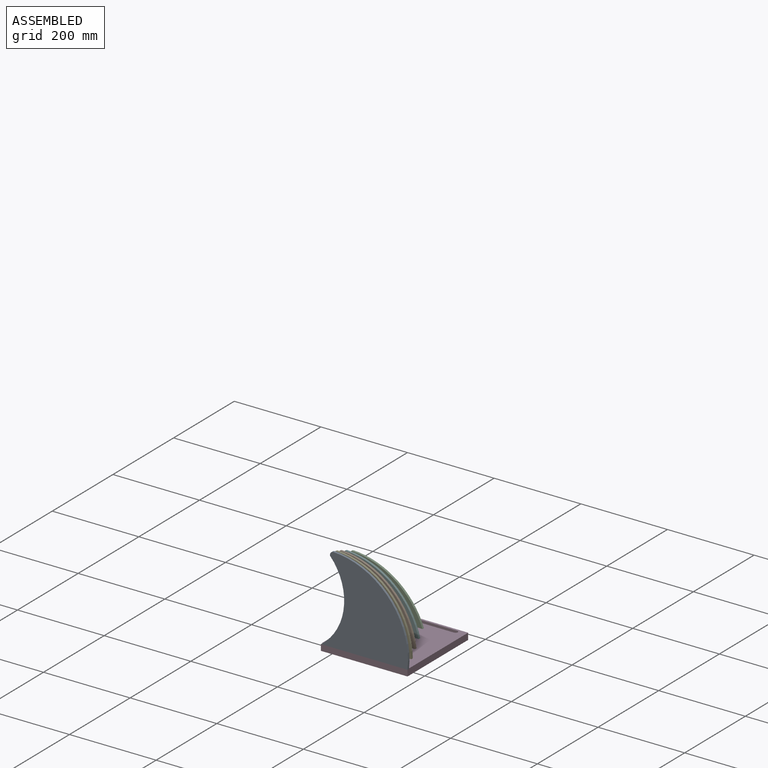
[diagram: assembled view]
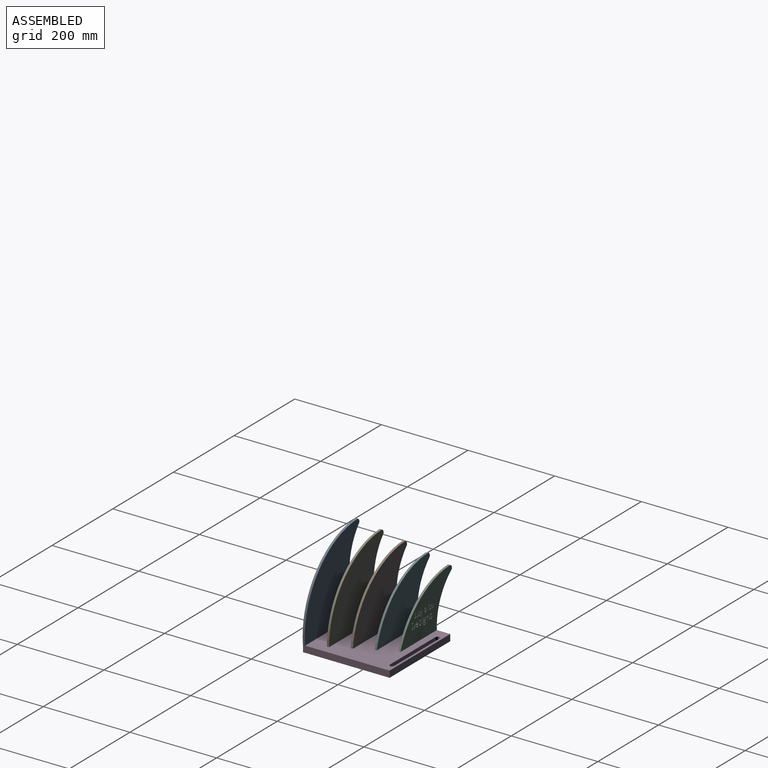
[diagram: assembled view, second angle]
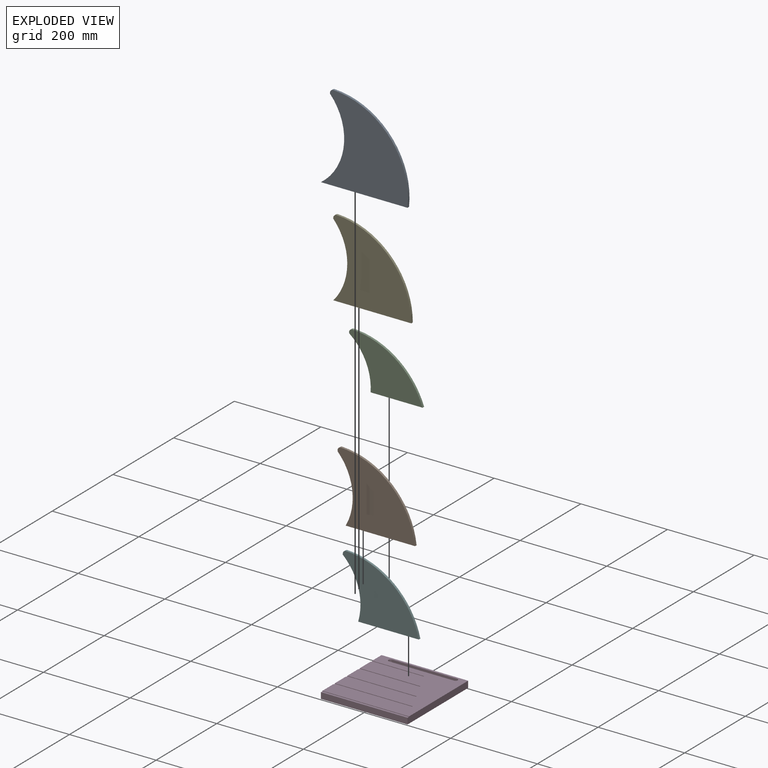
[diagram: exploded view]
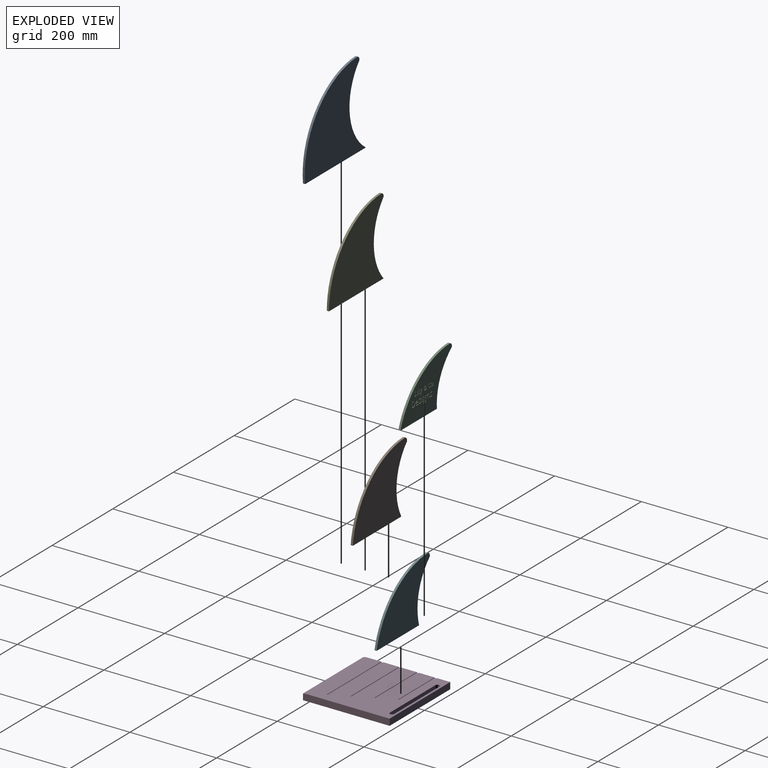
[diagram: exploded view, second angle]
ASSEMBLY  parts=6 mates=5
PART A: 7 faces, bbox 201.1x5x199.9 mm
  f0: cylinder r=180mm len=199.89mm, axis (0,1,0), area 1481.9mm2, adj f1,f4,f5,f6
  f1: cylinder r=8.34mm len=6.63mm, axis (0,1,0), area 48.8mm2, adj f0,f2,f5,f6
  f2: plane 5x3.04mm, normal (-1,0,0), area 15.2mm2, adj f1,f3,f5,f6
  f3: cylinder r=128.52mm len=190.22mm, axis (0,1,0), area 1079.5mm2, adj f2,f4,f5,f6
  f4: plane 200x5mm, normal (0,0,-1), area 1000mm2, adj f0,f3,f5,f6
  f5: plane 201.11x199.89mm, normal (0,-1,0), area 25371mm2, adj f0,f1,f2,f3,f4
  f6: plane 201.11x199.89mm, normal (0,1,0), area 25371mm2, adj f0,f1,f2,f3,f4
PART B: 7 faces, bbox 178.9x5x159.9 mm
  f0: cylinder r=180mm len=172.48mm, axis (0,1,0), area 1281.5mm2, adj f1,f4,f5,f6
  f1: cylinder r=8.34mm len=6.63mm, axis (0,1,0), area 48.8mm2, adj f0,f2,f5,f6
  f2: plane 5x3.04mm, normal (-1,0,0), area 15.2mm2, adj f1,f3,f5,f6
  f3: cylinder r=128.52mm len=150.22mm, axis (0,1,0), area 809.5mm2, adj f2,f4,f5,f6
  f4: plane 160x5mm, normal (0,0,-1), area 800mm2, adj f0,f3,f5,f6
  f5: plane 178.89x159.89mm, normal (0,-1,0), area 17881.6mm2, adj f0,f1,f2,f3,f4
  f6: plane 178.89x159.89mm, normal (0,1,0), area 17881.6mm2, adj f0,f1,f2,f3,f4
PART C: 336 faces, bbox 169.7x5x119.9 mm
  f0: plane 169.71x119.89mm, normal (0,1,0), area 10279mm2, adj f1,f2,f3,f4,f5,f7,f8,f11
  f1: cylinder r=180mm len=163.3mm, axis (0,1,0), area 1075.8mm2, adj f0,f2,f5,f6
  f2: cylinder r=8.34mm len=6.63mm, axis (0,1,0), area 48.8mm2, adj f0,f1,f3,f6
  f3: plane 5x3.04mm, normal (-1,0,0), area 15.2mm2, adj f0,f2,f4,f6
  f4: cylinder r=128.52mm len=110.22mm, axis (0,1,0), area 629.4mm2, adj f0,f3,f5,f6
  f5: plane 120x5mm, normal (0,0,-1), area 600mm2, adj f0,f1,f4,f6
  f6: plane 169.71x119.89mm, normal (0,-1,0), area 10865.3mm2, adj f1,f2,f3,f4,f5
  f7: plane 2x0.15mm, normal (1,0,0), area 0.3mm2, adj f0,f13,f14,f27
  f8: plane 2x0.15mm, normal (-1,0,0), area 0.3mm2, adj f0,f17,f26,f27
  f9: plane 2x0.15mm, normal (-1,0,0), area 0.3mm2, adj f20,f21,f27,f28
  f10: plane 2x0.15mm, normal (1,0,0), area 0.3mm2, adj f24,f25,f27,f28
  f11: extruded ~2.41x2mm, area 5.4mm2, adj f0,f12,f26,f27
  f12: extruded ~2.4x2mm, area 5.4mm2, adj f0,f11,f13,f27
  f13: extruded ~2.69x2mm, area 5.8mm2, adj f0,f7,f12,f27
  f14: extruded ~2.69x2mm, area 5.8mm2, adj f0,f7,f15,f27
  f15: extruded ~2.41x2mm, area 5.4mm2, adj f0,f14,f16,f27
  f16: extruded ~2.4x2mm, area 5.4mm2, adj f0,f15,f17,f27
  f17: extruded ~2.69x2mm, area 5.8mm2, adj f0,f8,f16,f27
  f18: extruded ~2x1.46mm, area 3.4mm2, adj f19,f25,f27,f28
  f19: extruded ~2x1.46mm, area 3.5mm2, adj f18,f20,f27,f28
  f20: extruded ~2x1.92mm, area 4mm2, adj f9,f19,f27,f28
  f21: extruded ~2x1.93mm, area 4mm2, adj f9,f22,f27,f28
  f22: extruded ~2x1.45mm, area 3.4mm2, adj f21,f23,f27,f28
  f23: extruded ~2x1.47mm, area 3.5mm2, adj f22,f24,f27,f28
  f24: extruded ~2x1.93mm, area 4mm2, adj f10,f23,f27,f28
  f25: extruded ~2x1.92mm, area 4mm2, adj f10,f18,f27,f28
  f26: extruded ~2.69x2mm, area 5.8mm2, adj f0,f8,f11,f27
  f27: plane 7.64x6.58mm, normal (0,1,0), area 23.1mm2, adj f7,f8,f9,f10,f11,f12,f13,f14
  f28: plane 5.53x3.9mm, normal (0,1,0), area 17.7mm2, adj f9,f10,f18,f19,f20,f21,f22,f23
  f29: plane 2x0.14mm, normal (-1,0,0), area 0.3mm2, adj f0,f39,f40,f53
  f30: plane 2x1.76mm, normal (1,0,0), area 3.5mm2, adj f0,f31,f43,f53
  f31: plane 2x0.94mm, normal (0,0,-1), area 1.9mm2, adj f0,f30,f32,f53
  f32: plane 2x1.4mm, normal (-0.98,0,-0.18), area 2.8mm2, adj f0,f31,f44,f53
  f33: plane 2x0.16mm, normal (1,0,0), area 0.3mm2, adj f0,f47,f48,f53
  f34: plane 2x1.4mm, normal (-0.98,0,0.18), area 2.8mm2, adj f0,f35,f51,f53
  f35: plane 2x0.94mm, normal (0,0,1), area 1.9mm2, adj f0,f34,f36,f53
  f36: plane 2x1.76mm, normal (1,0,0), area 3.5mm2, adj f0,f35,f52,f53
  f37: extruded ~2x1.99mm, area 4.1mm2, adj f0,f38,f52,f53
  f38: extruded ~3.19x2mm, area 7.2mm2, adj f0,f37,f39,f53
  f39: extruded ~3.6x2mm, area 7.8mm2, adj f0,f29,f38,f53
  f40: extruded ~3.59x2mm, area 7.8mm2, adj f0,f29,f41,f53
  f41: extruded ~3.17x2mm, area 7.2mm2, adj f0,f40,f42,f53
  f42: extruded ~2x1.99mm, area 4.1mm2, adj f0,f41,f43,f53
  f43: extruded ~2x1.28mm, area 3.3mm2, adj f0,f30,f42,f53
  f44: extruded ~2x0.85mm, area 2mm2, adj f0,f32,f45,f53
  f45: extruded ~2x1.22mm, area 2.5mm2, adj f0,f44,f46,f53
  f46: extruded ~2.25x2mm, area 5.2mm2, adj f0,f45,f47,f53
  f47: extruded ~2.85x2mm, area 6mm2, adj f0,f33,f46,f53
  f48: extruded ~2.84x2mm, area 6mm2, adj f0,f33,f49,f53
  f49: extruded ~2.37x2mm, area 5.5mm2, adj f0,f48,f50,f53
  f50: extruded ~2x1.14mm, area 2.3mm2, adj f0,f49,f51,f53
  f51: extruded ~2x0.8mm, area 1.9mm2, adj f0,f34,f50,f53
  f52: extruded ~2x1.28mm, area 3.3mm2, adj f0,f36,f37,f53
  f53: plane 10.19x7.68mm, normal (0,1,0), area 25.7mm2, adj f29,f30,f31,f32,f33,f34,f35,f36
  f54: plane 2x0.69mm, normal (-0.77,0,0.64), area 1.8mm2, adj f0,f55,f65,f96
  f55: plane 2x1.56mm, normal (0,0,1), area 3.1mm2, adj f0,f54,f56,f96
  f56: plane 2x0.04mm, normal (0.94,0,0.35), area 0.1mm2, adj f0,f55,f57,f96
  f57: plane 2x1.52mm, normal (0.77,0,-0.64), area 3.9mm2, adj f0,f56,f66,f96
  f58: plane 2x1.2mm, normal (0,0,-1), area 2.4mm2, adj f0,f67,f68,f96
  f59: plane 2.78x2.31mm, normal (0.77,0,-0.64), area 7.2mm2, adj f0,f60,f69,f96
  f60: plane 2x0.74mm, normal (0.59,0,0.81), area 1.8mm2, adj f0,f59,f70,f96
  f61: plane 2x0.27mm, normal (0.59,0,0.81), area 0.7mm2, adj f62,f82,f96,f97
  f62: plane 2.96x2.45mm, normal (-0.77,0,0.64), area 7.7mm2, adj f61,f83,f96,f97
  f63: plane 2x0.94mm, normal (-0.57,0,-0.82), area 2.3mm2, adj f89,f90,f96,f98
  f64: extruded ~2x1.37mm, area 2.8mm2, adj f0,f65,f95,f96
  f65: extruded ~2x1.2mm, area 2.7mm2, adj f0,f54,f64,f96
  f66: extruded ~2x1.37mm, area 3.2mm2, adj f0,f57,f67,f96
  f67: extruded ~2x1.65mm, area 3.4mm2, adj f0,f58,f66,f96
  f68: extruded ~2x1.14mm, area 2.3mm2, adj f0,f58,f69,f96
  f69: extruded ~2x0.98mm, area 2.1mm2, adj f0,f59,f68,f96
  f70: extruded ~2x1.06mm, area 2.9mm2, adj f0,f60,f71,f96
  f71: extruded ~2x1.15mm, area 2.5mm2, adj f0,f70,f72,f96
  f72: extruded ~2x1.49mm, area 3.4mm2, adj f0,f71,f73,f96
  f73: extruded ~2x1.75mm, area 3.8mm2, adj f0,f72,f74,f96
  f74: extruded ~2x1.83mm, area 4mm2, adj f0,f73,f75,f96
  f75: extruded ~2x1.77mm, area 3.9mm2, adj f0,f74,f76,f96
  f76: extruded ~2x1.09mm, area 2.3mm2, adj f0,f75,f77,f96
  f77: extruded ~2x1.2mm, area 2.9mm2, adj f0,f76,f78,f96
  f78: extruded ~2x1.43mm, area 3.8mm2, adj f0,f77,f79,f96
  f79: extruded ~2x1.45mm, area 3.1mm2, adj f0,f78,f80,f96
  f80: extruded ~2.03x2mm, area 4.6mm2, adj f0,f79,f95,f96
  f81: extruded ~2x0.76mm, area 1.6mm2, adj f82,f94,f96,f97
  f82: extruded ~2x0.88mm, area 2.4mm2, adj f61,f81,f96,f97
  f83: extruded ~2x0.9mm, area 2mm2, adj f62,f84,f96,f97
  f84: extruded ~2x0.97mm, area 2mm2, adj f83,f85,f96,f97
  f85: extruded ~2x1.4mm, area 3.1mm2, adj f84,f94,f96,f97
  f86: extruded ~2x0.86mm, area 1.9mm2, adj f87,f93,f96,f98
  f87: extruded ~2x0.73mm, area 1.7mm2, adj f86,f88,f96,f98
  f88: extruded ~2x0.67mm, area 1.4mm2, adj f87,f89,f96,f98
  f89: extruded ~2x0.56mm, area 1.6mm2, adj f63,f88,f96,f98
  f90: extruded ~2x0.85mm, area 2mm2, adj f63,f91,f96,f98
  f91: extruded ~2x0.75mm, area 1.6mm2, adj f90,f92,f96,f98
  f92: extruded ~2x0.94mm, area 2mm2, adj f91,f93,f96,f98
  f93: extruded ~2x0.85mm, area 1.9mm2, adj f86,f92,f96,f98
  f94: extruded ~2x1.26mm, area 2.8mm2, adj f81,f85,f96,f97
  f95: extruded ~2.35x2mm, area 5.1mm2, adj f0,f64,f80,f96
  f96: plane 10.19x7.94mm, normal (0,1,0), area 36mm2, adj f54,f55,f56,f57,f58,f59,f60,f61
  f97: plane 3.75x3.6mm, normal (0,1,0), area 8.1mm2, adj f61,f62,f81,f82,f83,f84,f85,f94
  f98: plane 2.93x2.34mm, normal (0,1,0), area 4.9mm2, adj f63,f86,f87,f88,f89,f90,f91,f92
  f99: plane 2x0.86mm, normal (-1,0,0), area 1.7mm2, adj f0,f100,f116,f125
  f100: plane 2x0.84mm, normal (-0.16,0,0.99), area 1.7mm2, adj f0,f99,f101,f125
  f101: plane 4.57x2mm, normal (-0.95,0,-0.32), area 9.6mm2, adj f0,f100,f102,f125
  f102: plane 2x0.04mm, normal (0,0,-1), area 0.1mm2, adj f0,f101,f103,f125
  f103: plane 2x0.94mm, normal (0.97,0,-0.25), area 1.9mm2, adj f0,f102,f104,f125
  f104: plane 3.63x2mm, normal (0.94,0,-0.33), area 7.7mm2, adj f0,f103,f105,f125
  f105: plane 2x0.83mm, normal (0.16,0,0.99), area 1.7mm2, adj f0,f104,f106,f125
  f106: plane 2x0.86mm, normal (1,0,0), area 1.7mm2, adj f0,f105,f107,f125
  f107: plane 2.97x2mm, normal (0,0,-1), area 5.9mm2, adj f0,f106,f108,f125
  f108: plane 2x0.86mm, normal (-1,0,0), area 1.7mm2, adj f0,f107,f109,f125
  f109: plane 2x0.67mm, normal (-0.16,0,0.99), area 1.4mm2, adj f0,f108,f110,f125
  f110: plane 6.24x2.43mm, normal (-0.93,0,0.36), area 13.4mm2, adj f0,f109,f111,f125
  f111: plane 2x0.76mm, normal (-0.92,0,-0.38), area 1.7mm2, adj f0,f110,f117,f125
  f112: plane 2x1.06mm, normal (-0.99,0,-0.13), area 2.1mm2, adj f0,f120,f121,f125
  f113: plane 7.52x2.8mm, normal (0.94,0,0.35), area 16.1mm2, adj f0,f114,f124,f125
  f114: plane 2x0.66mm, normal (0.15,0,0.99), area 1.3mm2, adj f0,f113,f115,f125
  f115: plane 2x0.86mm, normal (1,0,0), area 1.7mm2, adj f0,f114,f116,f125
  f116: plane 2.97x2mm, normal (0,0,-1), area 5.9mm2, adj f0,f99,f115,f125
  f117: extruded ~2x0.85mm, area 1.9mm2, adj f0,f111,f118,f125
  f118: extruded ~2x0.69mm, area 1.6mm2, adj f0,f117,f119,f125
  f119: extruded ~2x0.36mm, area 0.7mm2, adj f0,f118,f120,f125
  f120: extruded ~2x0.25mm, area 0.5mm2, adj f0,f112,f119,f125
  f121: extruded ~2x0.39mm, area 0.8mm2, adj f0,f112,f122,f125
  f122: extruded ~2x0.41mm, area 0.8mm2, adj f0,f121,f123,f125
  f123: extruded ~2x1.41mm, area 3.1mm2, adj f0,f122,f124,f125
  f124: extruded ~2x1.29mm, area 3.1mm2, adj f0,f113,f123,f125
  f125: plane 10.33x7.36mm, normal (0,1,0), area 26.3mm2, adj f99,f100,f101,f102,f103,f104,f105,f106
  f126: plane 2x1.11mm, normal (-0.17,0,-0.99), area 2.2mm2, adj f0,f127,f135,f136
  f127: plane 2x0.86mm, normal (-1,0,0), area 1.7mm2, adj f0,f126,f128,f136
  f128: plane 3.55x2mm, normal (0,0,1), area 7.1mm2, adj f0,f127,f129,f136
  f129: plane 2x0.86mm, normal (1,0,0), area 1.7mm2, adj f0,f128,f130,f136
  f130: plane 2x1.11mm, normal (0.17,0,-0.99), area 2.2mm2, adj f0,f129,f131,f136
  f131: plane 9.56x2mm, normal (1,0,0), area 19.1mm2, adj f0,f130,f132,f136
  f132: plane 2.45x2mm, normal (0,0,-1), area 4.9mm2, adj f0,f131,f133,f136
  f133: plane 2x0.86mm, normal (-1,0,0), area 1.7mm2, adj f0,f132,f134,f136
  f134: plane 2x1.11mm, normal (-0.17,0,0.99), area 2.2mm2, adj f0,f133,f135,f136
  f135: plane 8.51x2mm, normal (-1,0,0), area 17mm2, adj f0,f126,f134,f136
  f136: plane 10.61x3.55mm, normal (0,1,0), area 17.4mm2, adj f126,f127,f128,f129,f130,f131,f132,f133
  f137: plane 2x1.37mm, normal (-1,0,0), area 2.7mm2, adj f0,f138,f140,f141
  f138: plane 2x1.34mm, normal (0,0,1), area 2.7mm2, adj f0,f137,f139,f141
  f139: plane 2x1.37mm, normal (1,0,0), area 2.7mm2, adj f0,f138,f140,f141
  f140: plane 2x1.34mm, normal (0,0,-1), area 2.7mm2, adj f0,f137,f139,f141
  f141: plane 1.37x1.34mm, normal (0,1,0), area 1.8mm2, adj f137,f138,f139,f140
  f142: plane 2x0.86mm, normal (1,0,0), area 1.7mm2, adj f0,f143,f151,f152
  f143: plane 2x1.11mm, normal (0.17,0,-0.99), area 2.3mm2, adj f0,f142,f144,f152
  f144: plane 6.31x2mm, normal (1,0,0), area 12.6mm2, adj f0,f143,f145,f152
  f145: plane 2.45x2mm, normal (0,0,-1), area 4.9mm2, adj f0,f144,f146,f152
  f146: plane 2x0.86mm, normal (-1,0,0), area 1.7mm2, adj f0,f145,f147,f152
  f147: plane 2x1.11mm, normal (-0.17,0,0.99), area 2.3mm2, adj f0,f146,f148,f152
  f148: plane 5.26x2mm, normal (-1,0,0), area 10.5mm2, adj f0,f147,f149,f152
  f149: plane 2x1.11mm, normal (-0.17,0,-0.99), area 2.3mm2, adj f0,f148,f150,f152
  f150: plane 2x0.86mm, normal (-1,0,0), area 1.7mm2, adj f0,f149,f151,f152
  f151: plane 3.56x2mm, normal (0,0,1), area 7.1mm2, adj f0,f142,f150,f152
  f152: plane 7.36x3.56mm, normal (0,1,0), area 13mm2, adj f142,f143,f144,f145,f146,f147,f148,f149
  f153: plane 2x1.14mm, normal (0,0,-1), area 2.3mm2, adj f0,f154,f166,f167
  f154: plane 2x1.14mm, normal (-1,0,-0.09), area 2.3mm2, adj f0,f153,f155,f167
  f155: plane 3.44x2mm, normal (0,0,-1), area 6.9mm2, adj f0,f154,f156,f167
  f156: plane 7.8x2mm, normal (1,0,0), area 15.6mm2, adj f0,f155,f157,f167
  f157: plane 2x1.11mm, normal (0.17,0,0.99), area 2.2mm2, adj f0,f156,f158,f167
  f158: plane 2x0.86mm, normal (1,0,0), area 1.7mm2, adj f0,f157,f159,f167
  f159: plane 3.55x2mm, normal (0,0,-1), area 7.1mm2, adj f0,f158,f160,f167
  f160: plane 2x0.86mm, normal (-1,0,0), area 1.7mm2, adj f0,f159,f161,f167
  f161: plane 2x1.11mm, normal (-0.17,0,0.99), area 2.2mm2, adj f0,f160,f162,f167
  f162: plane 7.8x2mm, normal (-1,0,0), area 15.6mm2, adj f0,f161,f163,f167
  f163: plane 2x1.11mm, normal (-0.17,0,-0.99), area 2.2mm2, adj f0,f162,f164,f167
  f164: plane 2x0.86mm, normal (-1,0,0), area 1.7mm2, adj f0,f163,f165,f167
  f165: plane 7.13x2mm, normal (0,0,1), area 14.3mm2, adj f0,f164,f166,f167
  f166: plane 2.18x2mm, normal (1,0,0), area 4.4mm2, adj f0,f153,f165,f167
  f167: plane 9.9x7.13mm, normal (0,1,0), area 22.7mm2, adj f153,f154,f155,f156,f157,f158,f159,f160
  f168: plane 2x1.24mm, normal (0.92,0,0.4), area 2.7mm2, adj f0,f175,f176,f193
  f169: plane 2x1.41mm, normal (-1,0,0), area 2.8mm2, adj f0,f187,f188,f193
  f170: extruded ~2x1.76mm, area 3.8mm2, adj f0,f171,f192,f193
  f171: extruded ~2x0.66mm, area 1.7mm2, adj f0,f170,f172,f193
  f172: extruded ~2x0.69mm, area 1.5mm2, adj f0,f171,f173,f193
  f173: extruded ~2x0.93mm, area 2.3mm2, adj f0,f172,f174,f193
  f174: extruded ~2x1.63mm, area 3.4mm2, adj f0,f173,f175,f193
  f175: extruded ~2.74x2mm, area 5.6mm2, adj f0,f168,f174,f193
  f176: extruded ~3.17x2mm, area 6.5mm2, adj f0,f168,f177,f193
  f177: extruded ~2.74x2mm, area 5.7mm2, adj f0,f176,f178,f193
  f178: extruded ~2x1.94mm, area 4.5mm2, adj f0,f177,f179,f193
  f179: extruded ~2x1.18mm, area 2.5mm2, adj f0,f178,f180,f193
  f180: extruded ~2x0.88mm, area 2.5mm2, adj f0,f179,f181,f193
  f181: extruded ~2x1.99mm, area 4.4mm2, adj f0,f180,f182,f193
  f182: extruded ~2x1.98mm, area 4.4mm2, adj f0,f181,f183,f193
  f183: extruded ~2x1mm, area 2.3mm2, adj f0,f182,f184,f193
  f184: extruded ~2x1.16mm, area 2.8mm2, adj f0,f183,f185,f193
  f185: extruded ~2x1.83mm, area 3.8mm2, adj f0,f184,f186,f193
  f186: extruded ~2x1.6mm, area 3.2mm2, adj f0,f185,f187,f193
  f187: extruded ~2x1.55mm, area 3.3mm2, adj f0,f169,f186,f193
  f188: extruded ~3.11x2mm, area 6.4mm2, adj f0,f169,f189,f193
  f189: extruded ~2.93x2mm, area 6.2mm2, adj f0,f188,f190,f193
  f190: extruded ~2.16x2mm, area 5mm2, adj f0,f189,f191,f193
  f191: extruded ~2x1.66mm, area 3.6mm2, adj f0,f190,f192,f193
  f192: extruded ~2.41x2mm, area 5.5mm2, adj f0,f170,f191,f193
  f193: plane 10.4x7.11mm, normal (0,1,0), area 30.9mm2, adj f168,f169,f170,f171,f172,f173,f174,f175
  f194: plane 2x0.07mm, normal (0,0,-1), area 0.1mm2, adj f0,f195,f206,f211
  f195: plane 2x1.37mm, normal (0.98,0,-0.18), area 2.8mm2, adj f0,f194,f196,f211
  f196: plane 2x1.24mm, normal (0,0,-1), area 2.5mm2, adj f0,f195,f197,f211
  f197: plane 10.03x2mm, normal (-1,0,0), area 20.1mm2, adj f0,f196,f198,f211
  f198: plane 2x1.52mm, normal (0,0,1), area 3mm2, adj f0,f197,f199,f211
  f199: plane 5.26x2mm, normal (1,0,0), area 10.5mm2, adj f0,f198,f207,f211
  f200: plane 6.49x2mm, normal (-1,0,0), area 13mm2, adj f0,f201,f210,f211
  f201: plane 2x1.52mm, normal (0,0,1), area 3mm2, adj f0,f200,f202,f211
  f202: plane 6.54x2mm, normal (1,0,0), area 13.1mm2, adj f0,f201,f203,f211
  f203: extruded ~2.8x2mm, area 6.1mm2, adj f0,f202,f204,f211
  f204: extruded ~2.73x2mm, area 5.9mm2, adj f0,f203,f205,f211
  f205: extruded ~2x1.88mm, area 3.9mm2, adj f0,f204,f206,f211
  f206: extruded ~2x1.31mm, area 3.5mm2, adj f0,f194,f205,f211
  f207: extruded ~2.81x2mm, area 5.9mm2, adj f0,f199,f208,f211
  f208: extruded ~2.31x2mm, area 5.1mm2, adj f0,f207,f209,f211
  f209: extruded ~2x1.75mm, area 3.8mm2, adj f0,f208,f210,f211
  f210: extruded ~2x1.83mm, area 3.9mm2, adj f0,f200,f209,f211
  f211: plane 10.22x8.39mm, normal (0,1,0), area 36.5mm2, adj f194,f195,f196,f197,f198,f199,f200,f201
  f212: plane 2x1.78mm, normal (0,0,-1), area 3.5mm2, adj f0,f232,f233,f256
  f213: plane 2x1.86mm, normal (0.12,0,0.99), area 3.7mm2, adj f0,f214,f240,f256
  f214: plane 2x0.96mm, normal (1,0,0), area 1.9mm2, adj f0,f213,f215,f256
  f215: plane 3.47x2mm, normal (0,0,-1), area 6.9mm2, adj f0,f214,f255,f256
  f216: plane 2x1.82mm, normal (0,0,1), area 3.6mm2, adj f241,f254,f256,f257
  f217: extruded ~2.8x2mm, area 6mm2, adj f0,f218,f255,f256
  f218: extruded ~2.54x2mm, area 5.6mm2, adj f0,f217,f219,f256
  f219: extruded ~2x1.76mm, area 3.7mm2, adj f0,f218,f220,f256
  f220: extruded ~2x1.27mm, area 3.4mm2, adj f0,f219,f221,f256
  f221: extruded ~2x0.93mm, area 2.5mm2, adj f0,f220,f222,f256
  f222: extruded ~2x0.96mm, area 2mm2, adj f0,f221,f223,f256
  f223: extruded ~2x0.85mm, area 1.8mm2, adj f0,f222,f224,f256
  f224: extruded ~2x0.64mm, area 1.7mm2, adj f0,f223,f225,f256
  f225: extruded ~2x1.65mm, area 3.8mm2, adj f0,f224,f226,f256
  f226: extruded ~2x1.58mm, area 3.5mm2, adj f0,f225,f227,f256
  f227: extruded ~2.07x2mm, area 4.9mm2, adj f0,f226,f228,f256
  f228: extruded ~3.03x2mm, area 6.3mm2, adj f0,f227,f229,f256
  f229: extruded ~3.9x2mm, area 8.1mm2, adj f0,f228,f230,f256
  f230: extruded ~2.54x2mm, area 6mm2, adj f0,f229,f231,f256
  f231: extruded ~2x2mm, area 4.5mm2, adj f0,f230,f232,f256
  f232: extruded ~2.5x2mm, area 5.3mm2, adj f0,f212,f231,f256
  f233: extruded ~2x1.16mm, area 2.4mm2, adj f0,f212,f234,f256
  f234: extruded ~2x0.61mm, area 1.5mm2, adj f0,f233,f235,f256
  f235: extruded ~2x1.29mm, area 3.4mm2, adj f0,f234,f236,f256
  f236: extruded ~2x0.84mm, area 1.7mm2, adj f0,f235,f237,f256
  f237: extruded ~2.76x2mm, area 5.9mm2, adj f0,f236,f238,f256
  f238: extruded ~2.35x2mm, area 5.3mm2, adj f0,f237,f239,f256
  f239: extruded ~2x1.17mm, area 2.4mm2, adj f0,f238,f240,f256
  f240: extruded ~2x0.84mm, area 1.9mm2, adj f0,f213,f239,f256
  f241: extruded ~2x1.89mm, area 3.9mm2, adj f216,f242,f256,f257
  f242: extruded ~2x1.13mm, area 2.6mm2, adj f241,f243,f256,f257
  f243: extruded ~2x1.55mm, area 3.8mm2, adj f242,f244,f256,f257
  f244: extruded ~2.83x2mm, area 5.8mm2, adj f243,f245,f256,f257
  f245: extruded ~2x1.97mm, area 4.1mm2, adj f244,f246,f256,f257
  f246: extruded ~2x1.24mm, area 3mm2, adj f245,f247,f256,f257
  f247: extruded ~2x1.42mm, area 3.2mm2, adj f246,f254,f256,f257
  f248: extruded ~2.26x2.25mm, area 7.3mm2, adj f249,f253,f256,f258
  f249: extruded ~2.22x2.16mm, area 7.1mm2, adj f248,f250,f256,f258
  f250: extruded ~2x1.66mm, area 3.6mm2, adj f249,f251,f256,f258
  f251: extruded ~2x1.59mm, area 3.5mm2, adj f250,f252,f256,f258
  f252: extruded ~2x1.71mm, area 3.7mm2, adj f251,f253,f256,f258
  f253: extruded ~2x1.65mm, area 3.6mm2, adj f248,f252,f256,f258
  f254: extruded ~2x1.61mm, area 3.4mm2, adj f216,f247,f256,f257
  f255: extruded ~2x1.42mm, area 2.9mm2, adj f0,f215,f217,f256
  f256: plane 14.72x9.46mm, normal (0,1,0), area 57.6mm2, adj f212,f213,f214,f215,f216,f217,f218,f219
  f257: plane 6.41x3.57mm, normal (0,1,0), area 19.5mm2, adj f216,f241,f242,f243,f244,f245,f246,f247
  f258: plane 4.48x4.42mm, normal (0,1,0), area 16.4mm2, adj f248,f249,f250,f251,f252,f253
  f259: extruded ~2x0.63mm, area 1.4mm2, adj f0,f260,f266,f267
  f260: extruded ~2x0.76mm, area 1.7mm2, adj f0,f259,f261,f267
  f261: extruded ~2x0.76mm, area 1.7mm2, adj f0,f260,f262,f267
  f262: extruded ~2x0.63mm, area 1.4mm2, adj f0,f261,f263,f267
  f263: extruded ~2x0.64mm, area 1.4mm2, adj f0,f262,f264,f267
  f264: extruded ~2x0.76mm, area 1.7mm2, adj f0,f263,f265,f267
  f265: extruded ~2x0.76mm, area 1.7mm2, adj f0,f264,f266,f267
  f266: extruded ~2x0.64mm, area 1.4mm2, adj f0,f259,f265,f267
  f267: plane 2.02x1.8mm, normal (0,1,0), area 3mm2, adj f259,f260,f261,f262,f263,f264,f265,f266
  f268: plane 10.03x2mm, normal (-1,0,0), area 20.1mm2, adj f0,f269,f271,f272
  f269: plane 2x1.52mm, normal (0,0,1), area 3mm2, adj f0,f268,f270,f272
  f270: plane 10.03x2mm, normal (1,0,0), area 20.1mm2, adj f0,f269,f271,f272
  f271: plane 2x1.52mm, normal (0,0,-1), area 3mm2, adj f0,f268,f270,f272
  f272: plane 10.03x1.52mm, normal (0,1,0), area 15.2mm2, adj f268,f269,f270,f271
  f273: plane 2x1.24mm, normal (0.92,0,0.4), area 2.7mm2, adj f0,f280,f281,f298
  f274: plane 2x1.41mm, normal (-1,0,0), area 2.8mm2, adj f0,f292,f293,f298
  f275: extruded ~2x1.76mm, area 3.8mm2, adj f0,f276,f297,f298
  f276: extruded ~2x0.66mm, area 1.7mm2, adj f0,f275,f277,f298
  f277: extruded ~2x0.69mm, area 1.5mm2, adj f0,f276,f278,f298
  f278: extruded ~2x0.93mm, area 2.3mm2, adj f0,f277,f279,f298
  f279: extruded ~2x1.63mm, area 3.4mm2, adj f0,f278,f280,f298
  f280: extruded ~2.74x2mm, area 5.6mm2, adj f0,f273,f279,f298
  f281: extruded ~3.17x2mm, area 6.5mm2, adj f0,f273,f282,f298
  f282: extruded ~2.74x2mm, area 5.7mm2, adj f0,f281,f283,f298
  f283: extruded ~2x1.94mm, area 4.5mm2, adj f0,f282,f284,f298
  f284: extruded ~2x1.18mm, area 2.5mm2, adj f0,f283,f285,f298
  f285: extruded ~2x0.88mm, area 2.5mm2, adj f0,f284,f286,f298
  f286: extruded ~2x1.99mm, area 4.4mm2, adj f0,f285,f287,f298
  f287: extruded ~2x1.98mm, area 4.4mm2, adj f0,f286,f288,f298
  f288: extruded ~2x1mm, area 2.3mm2, adj f0,f287,f289,f298
  f289: extruded ~2x1.16mm, area 2.8mm2, adj f0,f288,f290,f298
  f290: extruded ~2x1.83mm, area 3.8mm2, adj f0,f289,f291,f298
  f291: extruded ~2x1.6mm, area 3.2mm2, adj f0,f290,f292,f298
  f292: extruded ~2x1.55mm, area 3.3mm2, adj f0,f274,f291,f298
  f293: extruded ~3.11x2mm, area 6.4mm2, adj f0,f274,f294,f298
  f294: extruded ~2.93x2mm, area 6.2mm2, adj f0,f293,f295,f298
  f295: extruded ~2.16x2mm, area 5mm2, adj f0,f294,f296,f298
  f296: extruded ~2x1.66mm, area 3.6mm2, adj f0,f295,f297,f298
  f297: extruded ~2.41x2mm, area 5.5mm2, adj f0,f275,f296,f298
  f298: plane 10.4x7.11mm, normal (0,1,0), area 30.9mm2, adj f273,f274,f275,f276,f277,f278,f279,f280
  f299: plane 2x1.36mm, normal (1,0,0), area 2.7mm2, adj f0,f303,f317,f318
  f300: plane 6.91x2mm, normal (0,0,1), area 13.8mm2, adj f0,f301,f305,f318
  f301: plane 2x0.96mm, normal (1,0,0), area 1.9mm2, adj f0,f300,f306,f318
  f302: plane 5.25x2mm, normal (0,0,-1), area 10.5mm2, adj f313,f316,f318,f319
  f303: extruded ~3.2x2mm, area 6.6mm2, adj f0,f299,f304,f318
  f304: extruded ~2.38x2mm, area 5.3mm2, adj f0,f303,f305,f318
  f305: extruded ~2.68x2mm, area 5.8mm2, adj f0,f300,f304,f318
  f306: extruded ~3.27x2mm, area 7.1mm2, adj f0,f301,f307,f318
  f307: extruded ~2.98x2mm, area 6.7mm2, adj f0,f306,f308,f318
  f308: extruded ~3.21x2mm, area 7.3mm2, adj f0,f307,f309,f318
  f309: extruded ~3.86x2mm, area 8.2mm2, adj f0,f308,f310,f318
  f310: extruded ~3.76x2mm, area 8.2mm2, adj f0,f309,f311,f318
  f311: extruded ~3.51x2mm, area 7.7mm2, adj f0,f310,f312,f318
  f312: extruded ~2x1.73mm, area 3.5mm2, adj f0,f311,f317,f318
  f313: extruded ~2.18x2mm, area 4.8mm2, adj f302,f314,f318,f319
  f314: extruded ~2x1.93mm, area 4.3mm2, adj f313,f315,f318,f319
  f315: extruded ~2x1.83mm, area 4.1mm2, adj f314,f316,f318,f319
  f316: extruded ~2.2x2mm, area 4.7mm2, adj f302,f315,f318,f319
  f317: extruded ~2x1.52mm, area 3.2mm2, adj f0,f299,f312,f318
  f318: plane 10.4x8.48mm, normal (0,1,0), area 40.1mm2, adj f299,f300,f301,f302,f303,f304,f305,f306
  f319: plane 5.25x2.96mm, normal (0,1,0), area 12.5mm2, adj f302,f313,f314,f315,f316
  f320: plane 4.1x2mm, normal (0,0,-1), area 8.2mm2, adj f0,f321,f333,f334
  f321: plane 13.38x2mm, normal (-1,0,0), area 26.8mm2, adj f0,f320,f322,f334
  f322: plane 3.71x2mm, normal (0,0,1), area 7.4mm2, adj f0,f321,f326,f334
  f323: plane 2x1.9mm, normal (0,0,-1), area 3.8mm2, adj f324,f332,f334,f335
  f324: plane 10.69x2mm, normal (1,0,0), area 21.4mm2, adj f323,f325,f334,f335
  f325: plane 2.26x2mm, normal (0,0,1), area 4.5mm2, adj f324,f329,f334,f335
  f326: extruded ~5.18x2mm, area 11.2mm2, adj f0,f322,f327,f334
  f327: extruded ~5.07x2mm, area 11.1mm2, adj f0,f326,f328,f334
  f328: extruded ~4.83x2mm, area 10.5mm2, adj f0,f327,f333,f334
  f329: extruded ~3.91x2mm, area 8.5mm2, adj f325,f330,f334,f335
  f330: extruded ~3.95x2mm, area 8.5mm2, adj f329,f331,f334,f335
  f331: extruded ~4.05x2mm, area 8.8mm2, adj f330,f332,f334,f335
  f332: extruded ~4.18x2mm, area 9mm2, adj f323,f331,f334,f335
  f333: extruded ~4.85x2mm, area 10.6mm2, adj f0,f320,f328,f334
  f334: plane 13.38x10.68mm, normal (0,1,0), area 56.6mm2, adj f320,f321,f322,f323,f324,f325,f326,f327
  f335: plane 10.69x7.48mm, normal (0,1,0), area 70.2mm2, adj f323,f324,f325,f329,f330,f331,f332
PART D: 31 faces, bbox 200x200x15 mm
  f0: plane 200x15mm, normal (0,1,0), area 2975mm2, adj f1,f2,f4,f5,f13,f14,f15,f17
  f1: plane 200x195mm, normal (0,0,1), area 34423.6mm2, adj f0,f3,f4,f6,f7,f8,f9,f10
  f2: plane 200x14mm, normal (-1,0,0), area 2800mm2, adj f0,f3,f5,f14
  f3: plane 200x15mm, normal (0,-1,0), area 2995mm2, adj f1,f2,f4,f5,f13,f14
  f4: plane 200x15mm, normal (1,0,0), area 3000mm2, adj f0,f1,f3,f5
  f5: plane 200x200mm, normal (0,0,-1), area 40000mm2, adj f0,f2,f3,f4
  f6: cylinder r=5.02mm len=10.04mm, axis (0,0,1), area 167.2mm2, adj f1,f7,f11,f12
  f7: plane 149.53x10mm, normal (1,0,0), area 1495.3mm2, adj f1,f6,f8,f12
  f8: plane 10x0.16mm, normal (0,1,0), area 1.6mm2, adj f1,f7,f9,f12
  f9: cylinder r=4.84mm len=10mm, axis (0,0,1), area 152mm2, adj f1,f8,f10,f12
  f10: plane 10x0.16mm, normal (0,1,0), area 1.6mm2, adj f1,f9,f11,f12
  f11: plane 149.53x10mm, normal (-1,0,0), area 1495.3mm2, adj f1,f6,f10,f12
  f12: plane 159.86x10.04mm, normal (0,0,1), area 1576.4mm2, adj f6,f7,f8,f9,f10,f11
  f13: plane 200x1mm, normal (-1,0,0), area 200mm2, adj f0,f1,f3,f14
  f14: plane 200x5mm, normal (0,0,1), area 1000mm2, adj f0,f2,f3,f13
  f15: plane 180x1mm, normal (1,0,0), area 180mm2, adj f0,f1,f16,f18
  f16: plane 5x1mm, normal (0,1,0), area 5mm2, adj f1,f15,f17,f18
  f17: plane 180x1mm, normal (-1,0,0), area 180mm2, adj f0,f1,f16,f18
  f18: plane 180x5mm, normal (0,0,1), area 900mm2, adj f0,f15,f16,f17
  f19: plane 160x1mm, normal (1,0,0), area 160mm2, adj f0,f1,f20,f22
  f20: plane 5x1mm, normal (0,1,0), area 5mm2, adj f1,f19,f21,f22
  f21: plane 160x1mm, normal (-1,0,0), area 160mm2, adj f0,f1,f20,f22
  f22: plane 160x5mm, normal (0,0,1), area 800mm2, adj f0,f19,f20,f21
  f23: plane 140x1mm, normal (1,0,0), area 140mm2, adj f0,f1,f24,f26
  f24: plane 5x1mm, normal (0,1,0), area 5mm2, adj f1,f23,f25,f26
  f25: plane 140x1mm, normal (-1,0,0), area 140mm2, adj f0,f1,f24,f26
  f26: plane 140x5mm, normal (0,0,1), area 700mm2, adj f0,f23,f24,f25
  f27: plane 120x1mm, normal (-1,0,0), area 120mm2, adj f0,f1,f29,f30
  f28: plane 120x1mm, normal (1,0,0), area 120mm2, adj f0,f1,f29,f30
  f29: plane 5x1mm, normal (0,1,0), area 5mm2, adj f1,f27,f28,f30
  f30: plane 120x5mm, normal (0,0,1), area 600mm2, adj f0,f27,f28,f29
PART E: 7 faces, bbox 180x5x179.9 mm
  f0: cylinder r=180mm len=179.89mm, axis (0,1,0), area 1381.7mm2, adj f1,f4,f5,f6
  f1: cylinder r=8.34mm len=6.63mm, axis (0,1,0), area 48.8mm2, adj f0,f2,f5,f6
  f2: plane 5x3.04mm, normal (-1,0,0), area 15.2mm2, adj f1,f3,f5,f6
  f3: cylinder r=128.52mm len=170.22mm, axis (0,1,0), area 930.2mm2, adj f2,f4,f5,f6
  f4: plane 180x5mm, normal (0,0,-1), area 900mm2, adj f0,f3,f5,f6
  f5: plane 180x179.89mm, normal (0,-1,0), area 21674.7mm2, adj f0,f1,f2,f3,f4
  f6: plane 180x179.89mm, normal (0,1,0), area 21674.7mm2, adj f0,f1,f2,f3,f4
PART F: 7 faces, bbox 175.5x5x139.9 mm
  f0: cylinder r=180mm len=169.1mm, axis (0,1,0), area 1180mm2, adj f1,f4,f5,f6
  f1: cylinder r=8.34mm len=6.63mm, axis (0,1,0), area 48.8mm2, adj f0,f2,f5,f6
  f2: plane 5x3.04mm, normal (-1,0,0), area 15.2mm2, adj f1,f3,f5,f6
  f3: cylinder r=128.52mm len=130.22mm, axis (0,1,0), area 710.5mm2, adj f2,f4,f5,f6
  f4: plane 140x5mm, normal (0,0,-1), area 700mm2, adj f0,f3,f5,f6
  f5: plane 175.5x139.89mm, normal (0,-1,0), area 14232.2mm2, adj f0,f1,f2,f3,f4
  f6: plane 175.5x139.89mm, normal (0,1,0), area 14232.2mm2, adj f0,f1,f2,f3,f4
PLACE A t=(326.3,-201.97,0.53)mm
PLACE B t=(286.3,-119.97,-39.47)mm
PLACE C t=(255.48,-37.97,-79.47)mm
PLACE D rot(axis=(0,0,1),90deg) t=(505.19,-206.97,-33.47)mm
PLACE E t=(305.19,-160.97,-19.47)mm
PLACE F t=(269.69,-78.97,-59.47)mm
MATE fastened D.f26 <-> F.f4  axis (0,0,1) through (375.19,-81.47,-19.47)mm
MATE fastened D.f22 <-> B.f4  axis (0,0,1) through (385.19,-122.47,-19.47)mm
MATE fastened A.f4 <-> D.f14  axis (0,0,-1) through (405.19,-204.47,-19.47)mm
MATE fastened D.f18 <-> E.f4  axis (0,0,1) through (395.19,-163.47,-19.47)mm
MATE fastened C.f5 <-> D.f30  axis (0,0,-1) through (365.19,-40.47,-19.47)mm
